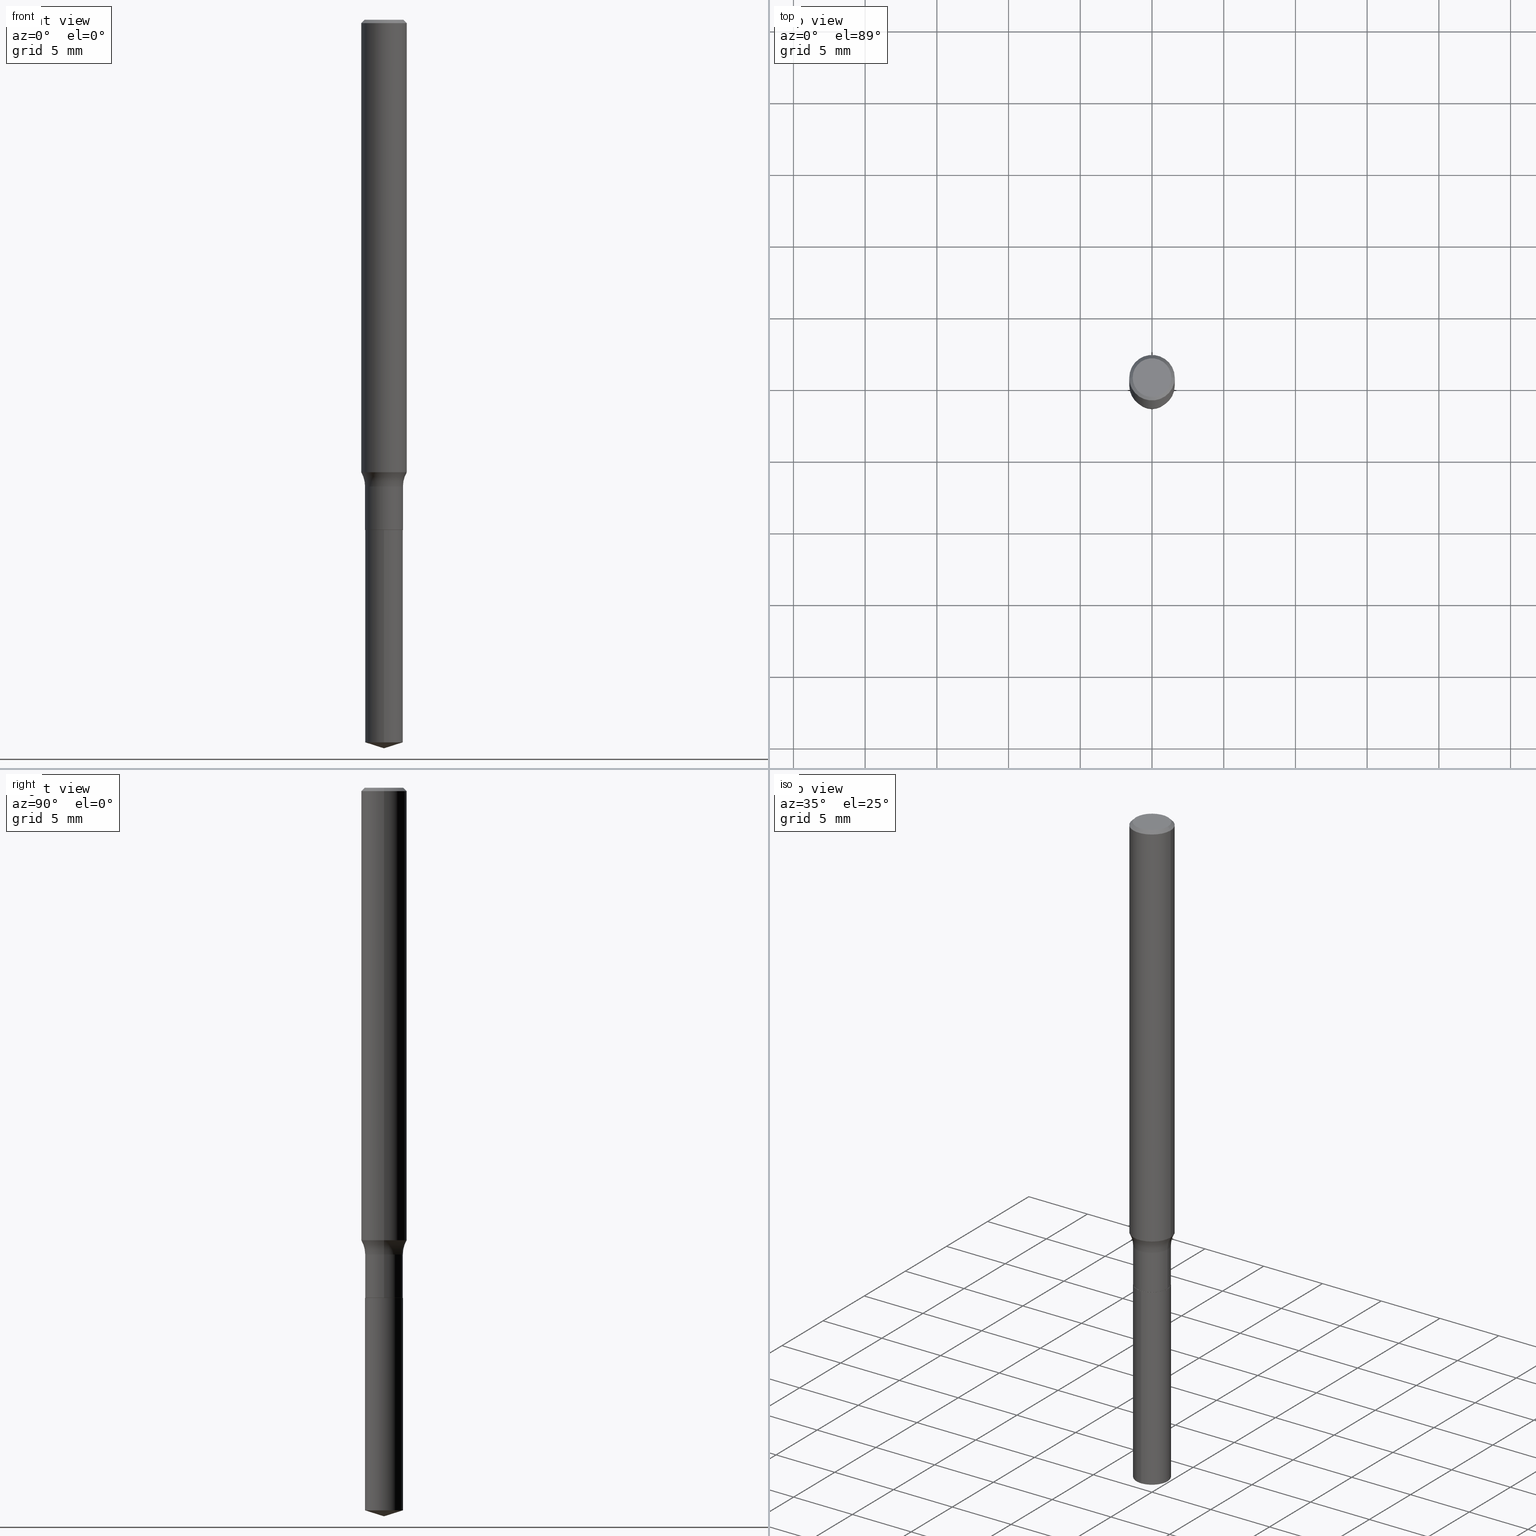
[diagram: canonical four-view strip — front | top / right | iso, engineering-drawing reading convention]
A machine part, canonical four-view strip (front | top / right | iso — engineering-drawing reading convention). The complete STEP part file that produces these views, byte-faithful:
ISO-10303-21;
HEADER;
FILE_DESCRIPTION (( 'STEP AP203' ),
    '1' );
FILE_NAME ('52309.STEP',
    '2024-04-19T13:33:06',
    ( '' ),
    ( '' ),
    'SwSTEP 2.0',
    'SolidWorks 2023',
    '' );
FILE_SCHEMA (( 'CONFIG_CONTROL_DESIGN' ));
ENDSEC;

DATA;
#1 = ORIENTED_EDGE ( 'NONE', *, *, #315, .F. ) ;
#2 = UNCERTAINTY_MEASURE_WITH_UNIT (LENGTH_MEASURE( 1.000000000000000082E-05 ), #287, 'distance_accuracy_value', 'NONE');
#3 = VERTEX_POINT ( 'NONE', #238 ) ;
#4 = CALENDAR_DATE ( 2024, 19, 4 ) ;
#5 = CONICAL_SURFACE ( 'NONE', #358, 124.8659371009133139, 1.265363707695887685 ) ;
#6 = FACE_OUTER_BOUND ( 'NONE', #313, .T. ) ;
#7 = VERTEX_POINT ( 'NONE', #174 ) ;
#8 = APPROVAL_STATUS ( 'not_yet_approved' ) ;
#9 = CARTESIAN_POINT ( 'NONE',  ( 3.425857250584757942E-29, -4.891216207585362759E-15, -1.400900000000000034 ) ) ;
#10 = EDGE_CURVE ( 'NONE', #286, #53, #359, .T. ) ;
#11 = ORIENTED_EDGE ( 'NONE', *, *, #382, .F. ) ;
#12 = VERTEX_POINT ( 'NONE', #429 ) ;
#13 = ORIENTED_EDGE ( 'NONE', *, *, #479, .F. ) ;
#14 = ORIENTED_EDGE ( 'NONE', *, *, #199, .T. ) ;
#15 = AXIS2_PLACEMENT_3D ( 'NONE', #9, #171, #318 ) ;
#16 = AXIS2_PLACEMENT_3D ( 'NONE', #71, #149, #442 ) ;
#17 = DIRECTION ( 'NONE',  ( -6.982962677686266711E-15, -1.000000000000000000, 5.253553833969737838E-15 ) ) ;
#18 = EDGE_CURVE ( 'NONE', #316, #53, #240, .T. ) ;
#19 = DIRECTION ( 'NONE',  ( -1.000000000000000000, 6.982962677686266711E-15, 0.000000000000000000 ) ) ;
#20 = ORIENTED_EDGE ( 'NONE', *, *, #59, .F. ) ;
#21 = LINE ( 'NONE', #147, #464 ) ;
#22 = DIRECTION ( 'NONE',  ( -2.445468806185136597E-29, 3.491481338843145583E-15, 1.000000000000000000 ) ) ;
#23 = APPROVAL_DATE_TIME ( #487, #415 ) ;
#24 = PRODUCT_DEFINITION ( 'UNKNOWN', '', #469, #130 ) ;
#25 = CLOSED_SHELL ( 'NONE', ( #490, #447, #491, #270, #39 ) ) ;
#26 = DIRECTION ( 'NONE',  ( -6.982962677686266711E-15, -1.000000000000000000, 5.253553833969737838E-15 ) ) ;
#27 = DIRECTION ( 'NONE',  ( -2.445468806185136597E-29, 3.491481338843145583E-15, 1.000000000000000000 ) ) ;
#28 = DIRECTION ( 'NONE',  ( -2.445468806185136877E-29, 3.491481338843145188E-15, 1.000000000000000000 ) ) ;
#29 = CARTESIAN_POINT ( 'NONE',  ( 0.000000000000000000, 0.000000000000000000, 0.000000000000000000 ) ) ;
#30 = FACE_OUTER_BOUND ( 'NONE', #371, .T. ) ;
#31 = EDGE_LOOP ( 'NONE', ( #226, #391, #167, #436 ) ) ;
#32 = PERSON_AND_ORGANIZATION ( #191, #117 ) ;
#33 = FACE_OUTER_BOUND ( 'NONE', #319, .T. ) ;
#34 = CC_DESIGN_PERSON_AND_ORGANIZATION_ASSIGNMENT ( #467, #127, ( #24 ) ) ;
#35 = DIRECTION ( 'NONE',  ( -2.445120969459093644E-29, 3.491979460832475934E-15, 1.000000000000000000 ) ) ;
#36 = ADVANCED_FACE ( 'NONE', ( #6 ), #138, .F. ) ;
#37 = CIRCLE ( 'NONE', #146, 0.05199999999999999067 ) ;
#38 = CIRCLE ( 'NONE', #159, 0.07799999999999999989 ) ;
#39 = ADVANCED_FACE ( 'NONE', ( #245 ), #89, .F. ) ;
#40 = VECTOR ( 'NONE', #308, 39.37007874015748143 ) ;
#41 = CIRCLE ( 'NONE', #229, 0.05312499999999999861 ) ;
#42 = VECTOR ( 'NONE', #292, 39.37007874015748143 ) ;
#43 = CARTESIAN_POINT ( 'NONE',  ( 3.037794505089405149E-29, -4.337165454302237008E-15, -1.242213557337613405 ) ) ;
#44 = ORIENTED_EDGE ( 'NONE', *, *, #426, .T. ) ;
#45 = ORIENTED_EDGE ( 'NONE', *, *, #221, .F. ) ;
#46 = APPLICATION_PROTOCOL_DEFINITION ( 'international standard', 'config_control_design', 1994, #105 ) ;
#47 = ADVANCED_BREP_SHAPE_REPRESENTATION ( '52309', ( #121, #119, #62 ), #445 ) ;
#48 = CARTESIAN_POINT ( 'NONE',  ( -0.06250000000000000000, 4.037025298037369491E-16, -0.009375000000000067307 ) ) ;
#49 = EDGE_LOOP ( 'NONE', ( #55, #139, #275, #427 ) ) ;
#50 = TOROIDAL_SURFACE ( 'NONE', #16, 0.1299999999999999767, 0.07799999999999999989 ) ;
#51 = EDGE_CURVE ( 'NONE', #355, #300, #242, .T. ) ;
#52 = CARTESIAN_POINT ( 'NONE',  ( 2.292627005798581937E-31, -3.273263755165472033E-17, -0.009375000000000067307 ) ) ;
#53 = VERTEX_POINT ( 'NONE', #54 ) ;
#54 = CARTESIAN_POINT ( 'NONE',  ( -0.06250000000000000000, -1.740859836076881399E-15, -0.009375000000000067307 ) ) ;
#55 = ORIENTED_EDGE ( 'NONE', *, *, #389, .T. ) ;
#56 = DIRECTION ( 'NONE',  ( -2.445120969459093644E-29, 3.491979460832475934E-15, 1.000000000000000000 ) ) ;
#57 = CARTESIAN_POINT ( 'NONE',  ( 4.850640152010381850E-29, -6.926008224040978869E-15, -1.983604462978292737 ) ) ;
#58 = EDGE_LOOP ( 'NONE', ( #407, #172, #211, #365 ) ) ;
#59 = EDGE_CURVE ( 'NONE', #316, #239, #91, .T. ) ;
#60 = COORDINATED_UNIVERSAL_TIME_OFFSET ( 5, 0, .BEHIND. ) ;
#61 = CIRCLE ( 'NONE', #198, 0.05200000000000000455 ) ;
#62 = AXIS2_PLACEMENT_3D ( 'NONE', #362, #400, #215 ) ;
#63 = DIRECTION ( 'NONE',  ( 1.000000000000000000, -6.982962677686268288E-15, 0.000000000000000000 ) ) ;
#64 = DIRECTION ( 'NONE',  ( 1.000000000000000000, -6.982962677686266711E-15, 0.000000000000000000 ) ) ;
#65 = PERSON_AND_ORGANIZATION_ROLE ( 'classification_officer' ) ;
#66 = DIRECTION ( 'NONE',  ( -2.445468806185136597E-29, 3.491481338843145583E-15, 1.000000000000000000 ) ) ;
#67 = DIRECTION ( 'NONE',  ( -6.659769872151623411E-15, -0.9537169507482254893, 0.3007057995042776710 ) ) ;
#68 = DIRECTION ( 'NONE',  ( -2.445468806185136877E-29, 3.491481338843145188E-15, 1.000000000000000000 ) ) ;
#69 = DIRECTION ( 'NONE',  ( 7.105427357601001859E-15, 1.000000000000000000, -3.491481338843145583E-15 ) ) ;
#70 = PRODUCT ( '52309', '52309', '', ( #366 ) ) ;
#71 = CARTESIAN_POINT ( 'NONE',  ( 3.133379181365015096E-29, -4.473635039459721750E-15, -1.281299999999999883 ) ) ;
#72 = AXIS2_PLACEMENT_3D ( 'NONE', #189, #99, #64 ) ;
#73 = PLANE ( 'NONE',  #386 ) ;
#74 = SECURITY_CLASSIFICATION ( '', '', #302 ) ;
#75 = CYLINDRICAL_SURFACE ( 'NONE', #234, 0.05199999999999999067 ) ;
#76 = DIRECTION ( 'NONE',  ( 1.000000000000000000, -6.982962677686266711E-15, 0.000000000000000000 ) ) ;
#77 = CARTESIAN_POINT ( 'NONE',  ( 3.425857250584757942E-29, -4.891216207585362759E-15, -1.400900000000000034 ) ) ;
#78 = ADVANCED_FACE ( 'NONE', ( #123 ), #423, .T. ) ;
#79 = AXIS2_PLACEMENT_3D ( 'NONE', #222, #22, #185 ) ;
#80 = AXIS2_PLACEMENT_3D ( 'NONE', #43, #394, #203 ) ;
#81 = AXIS2_PLACEMENT_3D ( 'NONE', #142, #112, #298 ) ;
#82 = PRODUCT_RELATED_PRODUCT_CATEGORY ( 'detail', '', ( #70 ) ) ;
#83 = DIRECTION ( 'NONE',  ( -2.445468806185136597E-29, 3.491481338843145583E-15, 1.000000000000000000 ) ) ;
#84 = ORIENTED_EDGE ( 'NONE', *, *, #462, .F. ) ;
#85 = PERSON_AND_ORGANIZATION_ROLE ( 'design_owner' ) ;
#86 = CARTESIAN_POINT ( 'NONE',  ( -0.06250000000000008327, 4.440892098500632078E-16, -3.074334431409319967E-30 ) ) ;
#87 = EDGE_LOOP ( 'NONE', ( #183, #430, #425, #472 ) ) ;
#88 = ADVANCED_FACE ( 'NONE', ( #387 ), #322, .T. ) ;
#89 = PLANE ( 'NONE',  #200 ) ;
#90 = ORIENTED_EDGE ( 'NONE', *, *, #59, .T. ) ;
#91 = CIRCLE ( 'NONE', #80, 0.06250000000000016653 ) ;
#92 = ORIENTED_EDGE ( 'NONE', *, *, #10, .T. ) ;
#93 = APPROVAL_PERSON_ORGANIZATION ( #413, #351, #227 ) ;
#94 = ORIENTED_EDGE ( 'NONE', *, *, #250, .F. ) ;
#95 = CARTESIAN_POINT ( 'NONE',  ( 3.425857250584757942E-29, -4.891216207585362759E-15, -1.400900000000000034 ) ) ;
#96 = CARTESIAN_POINT ( 'NONE',  ( 0.000000000000000000, 0.000000000000000000, 0.000000000000000000 ) ) ;
#97 = EDGE_LOOP ( 'NONE', ( #20, #364, #14, #252 ) ) ;
#98 = CARTESIAN_POINT ( 'NONE',  ( 0.06250000000000016653, -4.773600621657630255E-15, -1.242213557337613405 ) ) ;
#99 = DIRECTION ( 'NONE',  ( -2.445468806185136597E-29, 3.491481338843145583E-15, 1.000000000000000000 ) ) ;
#100 = CALENDAR_DATE ( 2024, 19, 4 ) ;
#101 = VECTOR ( 'NONE', #28, 39.37007874015748143 ) ;
#102 = CC_DESIGN_APPROVAL ( #492, ( #24 ) ) ;
#103 = LINE ( 'NONE', #335, #294 ) ;
#104 = CARTESIAN_POINT ( 'NONE',  ( 0.05312499999999999861, -4.129888592719941322E-16, -3.903561672281913772E-17 ) ) ;
#105 = APPLICATION_CONTEXT ( 'configuration controlled 3d designs of mechanical parts and assemblies' ) ;
#106 = DIRECTION ( 'NONE',  ( -2.445468806185136597E-29, 3.491481338843145583E-15, 1.000000000000000000 ) ) ;
#107 = FACE_OUTER_BOUND ( 'NONE', #243, .T. ) ;
#108 = DIRECTION ( 'NONE',  ( -2.445120969459093644E-29, 3.491979460832475934E-15, 1.000000000000000000 ) ) ;
#109 = PERSON_AND_ORGANIZATION ( #191, #117 ) ;
#110 = DIRECTION ( 'NONE',  ( 6.776566513254250249E-15, 0.9537169507482275987, 0.3007057995042710652 ) ) ;
#111 = ADVANCED_FACE ( 'NONE', ( #213 ), #367, .T. ) ;
#112 = DIRECTION ( 'NONE',  ( -2.445468806185136597E-29, 3.491481338843145583E-15, 1.000000000000000000 ) ) ;
#113 = DATE_AND_TIME ( #187, #168 ) ;
#114 = CARTESIAN_POINT ( 'NONE',  ( -0.1299999999999999767, -3.549929482971591477E-15, -1.281299999999999883 ) ) ;
#115 = AXIS2_PLACEMENT_3D ( 'NONE', #456, #269, #116 ) ;
#116 = DIRECTION ( 'NONE',  ( -6.982962677686266711E-15, -1.000000000000000000, 5.253553833969737838E-15 ) ) ;
#117 = ORGANIZATION ( 'UNSPECIFIED', 'UNSPECIFIED', '' ) ;
#118 = ADVANCED_FACE ( 'NONE', ( #476 ), #342, .F. ) ;
#119 = MANIFOLD_SOLID_BREP ( 'Body-Move/Copy2[2]', #256 ) ;
#120 = AXIS2_PLACEMENT_3D ( 'NONE', #96, #186, #150 ) ;
#121 = MANIFOLD_SOLID_BREP ( 'Body-Move/Copy2[1]', #25 ) ;
#122 = ADVANCED_FACE ( 'NONE', ( #411 ), #348, .T. ) ;
#123 = FACE_OUTER_BOUND ( 'NONE', #276, .T. ) ;
#124 = AXIS2_PLACEMENT_3D ( 'NONE', #301, #417, #76 ) ;
#125 = ORIENTED_EDGE ( 'NONE', *, *, #305, .T. ) ;
#126 = CC_DESIGN_APPROVAL ( #415, ( #469 ) ) ;
#127 = PERSON_AND_ORGANIZATION_ROLE ( 'creator' ) ;
#128 = ORIENTED_EDGE ( 'NONE', *, *, #409, .F. ) ;
#129 = EDGE_CURVE ( 'NONE', #3, #300, #412, .T. ) ;
#130 = DESIGN_CONTEXT ( 'detailed design', #105, 'design' ) ;
#131 = ORIENTED_EDGE ( 'NONE', *, *, #184, .F. ) ;
#132 = CALENDAR_DATE ( 2024, 19, 4 ) ;
#133 = ORIENTED_EDGE ( 'NONE', *, *, #421, .F. ) ;
#134 =( NAMED_UNIT ( * ) PLANE_ANGLE_UNIT ( ) SI_UNIT ( $, .RADIAN. ) );
#135 = ORIENTED_EDGE ( 'NONE', *, *, #374, .T. ) ;
#136 = AXIS2_PLACEMENT_3D ( 'NONE', #403, #265, #63 ) ;
#137 = CIRCLE ( 'NONE', #419, 0.05149999999999999023 ) ;
#138 = PLANE ( 'NONE',  #228 ) ;
#139 = ORIENTED_EDGE ( 'NONE', *, *, #151, .T. ) ;
#140 = DIRECTION ( 'NONE',  ( -2.445120969459093644E-29, 3.491979460832475934E-15, 1.000000000000000000 ) ) ;
#141 = DIRECTION ( 'NONE',  ( 1.000000000000000000, -6.982962677686270655E-15, 0.000000000000000000 ) ) ;
#142 = CARTESIAN_POINT ( 'NONE',  ( 0.000000000000000000, 0.000000000000000000, 0.000000000000000000 ) ) ;
#143 = DIRECTION ( 'NONE',  ( -2.445468806185136597E-29, 3.491481338843145583E-15, 1.000000000000000000 ) ) ;
#144 = PERSON_AND_ORGANIZATION ( #191, #117 ) ;
#145 = EDGE_LOOP ( 'NONE', ( #206, #474, #128, #180 ) ) ;
#146 = AXIS2_PLACEMENT_3D ( 'NONE', #406, #56, #26 ) ;
#147 = CARTESIAN_POINT ( 'NONE',  ( -0.05149999999999999023, -4.525286698668911232E-15, -1.400900000000000034 ) ) ;
#148 = CIRCLE ( 'NONE', #434, 0.05312499999999999861 ) ;
#149 = DIRECTION ( 'NONE',  ( -2.445468806185136597E-29, 3.491481338843145583E-15, 1.000000000000000000 ) ) ;
#150 = DIRECTION ( 'NONE',  ( 1.000000000000000000, -6.982962677686266711E-15, 4.876176775795935793E-29 ) ) ;
#151 = EDGE_CURVE ( 'NONE', #246, #12, #220, .T. ) ;
#152 = PERSON_AND_ORGANIZATION_ROLE ( 'design_supplier' ) ;
#153 = LINE ( 'NONE', #383, #268 ) ;
#154 = DIRECTION ( 'NONE',  ( -2.445468806185136597E-29, 3.491481338843145583E-15, 1.000000000000000000 ) ) ;
#155 = DIRECTION ( 'NONE',  ( -2.445468806185136597E-29, 3.491481338843145583E-15, 1.000000000000000000 ) ) ;
#156 = SHAPE_DEFINITION_REPRESENTATION ( #194, #47 ) ;
#157 = LINE ( 'NONE', #439, #218 ) ;
#158 = EDGE_CURVE ( 'NONE', #12, #466, #37, .T. ) ;
#159 = AXIS2_PLACEMENT_3D ( 'NONE', #182, #340, #141 ) ;
#160 = AXIS2_PLACEMENT_3D ( 'NONE', #188, #154, #328 ) ;
#161 = AXIS2_PLACEMENT_3D ( 'NONE', #451, #108, #263 ) ;
#162 = DIRECTION ( 'NONE',  ( 1.000000000000000000, -6.982962677686265922E-15, 4.876176775795935793E-29 ) ) ;
#163 = ORIENTED_EDGE ( 'NONE', *, *, #420, .F. ) ;
#164 = DATE_AND_TIME ( #132, #459 ) ;
#165 = EDGE_CURVE ( 'NONE', #309, #466, #103, .T. ) ;
#166 = AXIS2_PLACEMENT_3D ( 'NONE', #249, #143, #293 ) ;
#167 = ORIENTED_EDGE ( 'NONE', *, *, #409, .T. ) ;
#168 = LOCAL_TIME ( 9, 33, 6.000000000000000000, #338 ) ;
#169 = DIRECTION ( 'NONE',  ( 2.445120969459093363E-29, -3.491979460832475934E-15, -1.000000000000000000 ) ) ;
#170 = ORIENTED_EDGE ( 'NONE', *, *, #463, .F. ) ;
#171 = DIRECTION ( 'NONE',  ( -2.445468806185136597E-29, 3.491481338843145583E-15, 1.000000000000000000 ) ) ;
#172 = ORIENTED_EDGE ( 'NONE', *, *, #315, .T. ) ;
#173 = APPLICATION_PROTOCOL_DEFINITION ( 'international standard', 'config_control_design', 1994, #251 ) ;
#174 = CARTESIAN_POINT ( 'NONE',  ( 4.890241938918187287E-29, -6.983958921664951869E-15, -2.000000000000000000 ) ) ;
#175 = VERTEX_POINT ( 'NONE', #260 ) ;
#176 = CIRCLE ( 'NONE', #72, 0.06250000000000000000 ) ;
#177 = EDGE_LOOP ( 'NONE', ( #433, #440, #323, #13 ) ) ;
#178 = CARTESIAN_POINT ( 'NONE',  ( 0.06250000000000000000, -4.691678049070464390E-16, -0.009375000000000067307 ) ) ;
#179 = APPROVAL_STATUS ( 'not_yet_approved' ) ;
#180 = ORIENTED_EDGE ( 'NONE', *, *, #465, .F. ) ;
#181 = DIRECTION ( 'NONE',  ( -2.445468806185136597E-29, 3.491481338843145583E-15, 1.000000000000000000 ) ) ;
#182 = CARTESIAN_POINT ( 'NONE',  ( 0.1299999999999999767, -5.381420187558935949E-15, -1.281299999999999883 ) ) ;
#183 = ORIENTED_EDGE ( 'NONE', *, *, #341, .F. ) ;
#184 = EDGE_CURVE ( 'NONE', #7, #309, #369, .T. ) ;
#185 = DIRECTION ( 'NONE',  ( 1.000000000000000000, -6.982962677686259611E-15, 0.000000000000000000 ) ) ;
#186 = DIRECTION ( 'NONE',  ( -2.445468806185136597E-29, 3.491481338843145583E-15, 1.000000000000000000 ) ) ;
#187 = CALENDAR_DATE ( 2024, 19, 4 ) ;
#188 = CARTESIAN_POINT ( 'NONE',  ( 3.133379181365015096E-29, -4.473635039459721750E-15, -1.281299999999999883 ) ) ;
#189 = CARTESIAN_POINT ( 'NONE',  ( 2.292627005798581937E-31, -3.273263755165472033E-17, -0.009375000000000067307 ) ) ;
#190 = APPROVAL_STATUS ( 'not_yet_approved' ) ;
#191 = PERSON ( 'UNSPECIFIED', 'UNSPECIFIED', 'UNSPECIFIED', ('UNSPECIFIED'), ('UNSPECIFIED'), ('UNSPECIFIED') ) ;
#192 = FACE_OUTER_BOUND ( 'NONE', #49, .T. ) ;
#193 = CARTESIAN_POINT ( 'NONE',  ( 3.694822225952862472E-16, 0.05199999999999509875, -1.400900000000000256 ) ) ;
#194 = PRODUCT_DEFINITION_SHAPE ( 'NONE', 'NONE',  #24 ) ;
#195 = CARTESIAN_POINT ( 'NONE',  ( -9.137387587342702156E-28, 1.304962452294171470E-13, 37.37007874015748143 ) ) ;
#196 = DIRECTION ( 'NONE',  ( -2.445120969459093644E-29, 3.491979460832475934E-15, 1.000000000000000000 ) ) ;
#197 = AXIS2_PLACEMENT_3D ( 'NONE', #52, #352, #210 ) ;
#198 = AXIS2_PLACEMENT_3D ( 'NONE', #486, #155, #299 ) ;
#199 = EDGE_CURVE ( 'NONE', #175, #324, #236, .T. ) ;
#200 = AXIS2_PLACEMENT_3D ( 'NONE', #396, #169, #354 ) ;
#201 = VECTOR ( 'NONE', #368, 39.37007874015748143 ) ;
#202 = VECTOR ( 'NONE', #110, 39.37007874015748143 ) ;
#203 = DIRECTION ( 'NONE',  ( 1.000000000000000000, -6.982962677686259611E-15, 0.000000000000000000 ) ) ;
#204 = ADVANCED_FACE ( 'NONE', ( #398 ), #271, .T. ) ;
#205 = DIRECTION ( 'NONE',  ( -0.7071067811865465735, 2.468850131082246805E-15, -0.7071067811865484609 ) ) ;
#206 = ORIENTED_EDGE ( 'NONE', *, *, #221, .T. ) ;
#207 = ORIENTED_EDGE ( 'NONE', *, *, #158, .T. ) ;
#208 = AXIS2_PLACEMENT_3D ( 'NONE', #114, #69, #334 ) ;
#209 = ORIENTED_EDGE ( 'NONE', *, *, #337, .F. ) ;
#210 = DIRECTION ( 'NONE',  ( -1.000000000000000000, 6.982962677686266711E-15, 0.000000000000000000 ) ) ;
#211 = ORIENTED_EDGE ( 'NONE', *, *, #165, .T. ) ;
#212 =( NAMED_UNIT ( * ) SI_UNIT ( $, .STERADIAN. ) SOLID_ANGLE_UNIT ( ) );
#213 = FACE_OUTER_BOUND ( 'NONE', #320, .T. ) ;
#214 = ORIENTED_EDGE ( 'NONE', *, *, #346, .F. ) ;
#215 = DIRECTION ( 'NONE',  ( 1.000000000000000000, 0.000000000000000000, 0.000000000000000000 ) ) ;
#216 = DIRECTION ( 'NONE',  ( -2.445120969459093644E-29, 3.491979460832475934E-15, 1.000000000000000000 ) ) ;
#217 = DIRECTION ( 'NONE',  ( -6.982962677686266711E-15, -1.000000000000000000, 5.253553833969737838E-15 ) ) ;
#218 = VECTOR ( 'NONE', #68, 39.37007874015748143 ) ;
#219 = EDGE_CURVE ( 'NONE', #324, #175, #393, .T. ) ;
#220 = LINE ( 'NONE', #193, #201 ) ;
#221 = EDGE_CURVE ( 'NONE', #239, #316, #404, .T. ) ;
#222 = CARTESIAN_POINT ( 'NONE',  ( 3.037794505089405149E-29, -4.337165454302237008E-15, -1.242213557337613405 ) ) ;
#223 = CARTESIAN_POINT ( 'NONE',  ( 4.773019151292988932E-46, -6.814606366898300824E-32, -1.951780836141094012E-17 ) ) ;
#224 = CARTESIAN_POINT ( 'NONE',  ( 3.133379181365015096E-29, -4.473635039459721750E-15, -1.281299999999999883 ) ) ;
#225 = CARTESIAN_POINT ( 'NONE',  ( 9.546038302585977863E-46, -1.362921273379660165E-31, -3.903561672282188024E-17 ) ) ;
#226 = ORIENTED_EDGE ( 'NONE', *, *, #374, .F. ) ;
#227 = APPROVAL_ROLE ( '' ) ;
#228 = AXIS2_PLACEMENT_3D ( 'NONE', #432, #237, #162 ) ;
#229 = AXIS2_PLACEMENT_3D ( 'NONE', #443, #408, #373 ) ;
#230 = FACE_OUTER_BOUND ( 'NONE', #145, .T. ) ;
#231 = CARTESIAN_POINT ( 'NONE',  ( 0.05200000000000000455, -5.252584526155628197E-15, -1.400400000000000089 ) ) ;
#232 = CARTESIAN_POINT ( 'NONE',  ( 3.425857250584757942E-29, -4.891216207585362759E-15, -1.400900000000000034 ) ) ;
#233 = DIRECTION ( 'NONE',  ( -2.445120969459093644E-29, 3.491979460832475934E-15, 1.000000000000000000 ) ) ;
#234 = AXIS2_PLACEMENT_3D ( 'NONE', #232, #196, #381 ) ;
#235 = ADVANCED_FACE ( 'NONE', ( #248 ), #330, .T. ) ;
#236 = CIRCLE ( 'NONE', #281, 0.05199999999999998374 ) ;
#237 = DIRECTION ( 'NONE',  ( -2.438088387897960049E-29, 3.491481338843145188E-15, 1.000000000000000000 ) ) ;
#238 = CARTESIAN_POINT ( 'NONE',  ( -0.05200000000000000455, -4.312070530592579472E-15, -1.400400000000000089 ) ) ;
#239 = VERTEX_POINT ( 'NONE', #98 ) ;
#240 = LINE ( 'NONE', #86, #307 ) ;
#241 = ORIENTED_EDGE ( 'NONE', *, *, #129, .F. ) ;
#242 = LINE ( 'NONE', #435, #40 ) ;
#243 = EDGE_LOOP ( 'NONE', ( #133, #45, #125, #388 ) ) ;
#244 = ADVANCED_FACE ( 'NONE', ( #107 ), #50, .F. ) ;
#245 = FACE_OUTER_BOUND ( 'NONE', #399, .T. ) ;
#246 = VERTEX_POINT ( 'NONE', #295 ) ;
#247 = CC_DESIGN_DATE_AND_TIME_ASSIGNMENT ( #431, #392, ( #24 ) ) ;
#248 = FACE_OUTER_BOUND ( 'NONE', #177, .T. ) ;
#249 = CARTESIAN_POINT ( 'NONE',  ( 3.425857250584757942E-29, -4.891216207585362759E-15, -1.400900000000000034 ) ) ;
#250 = EDGE_CURVE ( 'NONE', #306, #274, #450, .T. ) ;
#251 = APPLICATION_CONTEXT ( 'configuration controlled 3d designs of mechanical parts and assemblies' ) ;
#252 = ORIENTED_EDGE ( 'NONE', *, *, #305, .F. ) ;
#253 = ORIENTED_EDGE ( 'NONE', *, *, #463, .T. ) ;
#254 = CARTESIAN_POINT ( 'NONE',  ( 0.06250000000000000000, -4.615137624123754923E-16, -0.009375000000000067307 ) ) ;
#255 = CARTESIAN_POINT ( 'NONE',  ( -0.05312499999999999861, 3.873362110279098601E-16, -3.903561672282453649E-17 ) ) ;
#256 = CLOSED_SHELL ( 'NONE', ( #122, #204, #257, #118, #235, #88, #244, #279, #78, #288, #36, #111 ) ) ;
#257 = ADVANCED_FACE ( 'NONE', ( #230 ), #380, .T. ) ;
#258 = CONICAL_SURFACE ( 'NONE', #312, 124.8659371009133139, 1.265363707695887685 ) ;
#259 = DIRECTION ( 'NONE',  ( -6.982962677686267499E-15, -1.000000000000000000, 3.500519750498753736E-15 ) ) ;
#260 = CARTESIAN_POINT ( 'NONE',  ( -0.05199999999999998374, -4.312070530592579472E-15, -1.281299999999999883 ) ) ;
#261 = DIRECTION ( 'NONE',  ( 1.000000000000000000, -6.982962677686268288E-15, 0.000000000000000000 ) ) ;
#262 = CARTESIAN_POINT ( 'NONE',  ( 3.424634516181665701E-29, -4.889470466915941255E-15, -1.400400000000000089 ) ) ;
#263 = DIRECTION ( 'NONE',  ( -6.982962677686266711E-15, -1.000000000000000000, 5.253553833969737838E-15 ) ) ;
#264 = LINE ( 'NONE', #267, #101 ) ;
#265 = DIRECTION ( 'NONE',  ( -2.445468806185136597E-29, 3.491481338843145583E-15, 1.000000000000000000 ) ) ;
#266 = AXIS2_PLACEMENT_3D ( 'NONE', #454, #480, #19 ) ;
#267 = CARTESIAN_POINT ( 'NONE',  ( 0.06250000000000008327, -4.364351673553922611E-16, 3.047610484872464074E-30 ) ) ;
#268 = VECTOR ( 'NONE', #453, 39.37007874015748143 ) ;
#269 = DIRECTION ( 'NONE',  ( -2.445120969459093644E-29, 3.491979460832475934E-15, 1.000000000000000000 ) ) ;
#270 = ADVANCED_FACE ( 'NONE', ( #285 ), #438, .T. ) ;
#271 = CONICAL_SURFACE ( 'NONE', #266, 0.06250000000000000000, 0.7853981633974469467 ) ;
#272 = CIRCLE ( 'NONE', #161, 0.05199999999999999067 ) ;
#273 = CARTESIAN_POINT ( 'NONE',  ( 0.000000000000000000, 0.000000000000000000, 0.000000000000000000 ) ) ;
#274 = VERTEX_POINT ( 'NONE', #178 ) ;
#275 = ORIENTED_EDGE ( 'NONE', *, *, #357, .F. ) ;
#276 = EDGE_LOOP ( 'NONE', ( #94, #170, #92, #395 ) ) ;
#277 = ORIENTED_EDGE ( 'NONE', *, *, #462, .T. ) ;
#278 = ORIENTED_EDGE ( 'NONE', *, *, #357, .T. ) ;
#279 = ADVANCED_FACE ( 'NONE', ( #325 ), #478, .T. ) ;
#280 = AXIS2_PLACEMENT_3D ( 'NONE', #273, #83, #363 ) ;
#281 = AXIS2_PLACEMENT_3D ( 'NONE', #224, #181, #375 ) ;
#282 = ORIENTED_EDGE ( 'NONE', *, *, #51, .T. ) ;
#283 = APPROVAL_PERSON_ORGANIZATION ( #370, #415, #452 ) ;
#284 =( LENGTH_UNIT ( ) NAMED_UNIT ( * ) SI_UNIT ( $, .METRE. ) );
#285 = FACE_OUTER_BOUND ( 'NONE', #58, .T. ) ;
#286 = VERTEX_POINT ( 'NONE', #255 ) ;
#287 =( CONVERSION_BASED_UNIT ( 'INCH', #317 ) LENGTH_UNIT ( ) NAMED_UNIT ( #461 ) );
#288 = ADVANCED_FACE ( 'NONE', ( #30 ), #73, .F. ) ;
#289 = CARTESIAN_POINT ( 'NONE',  ( 4.890241938918187287E-29, -6.983958921664951869E-15, -2.000000000000000000 ) ) ;
#290 = CARTESIAN_POINT ( 'NONE',  ( 0.05199999999999998374, -4.836749098699407114E-15, -1.281299999999999883 ) ) ;
#291 = DIRECTION ( 'NONE',  ( -0.7071067811866259545, 7.493145998870638150E-15, 0.7071067811864690800 ) ) ;
#292 = DIRECTION ( 'NONE',  ( 0.7071067811865465735, -7.319954787623252890E-15, -0.7071067811865484609 ) ) ;
#293 = DIRECTION ( 'NONE',  ( 1.000000000000000000, -6.982962677686268288E-15, 0.000000000000000000 ) ) ;
#294 = VECTOR ( 'NONE', #140, 39.37007874015748143 ) ;
#295 = CARTESIAN_POINT ( 'NONE',  ( 3.694822225953003974E-16, 0.05199999999999304484, -1.983604462978292959 ) ) ;
#296 = CARTESIAN_POINT ( 'NONE',  ( 0.05149999999999999023, -5.250838785486205905E-15, -1.400900000000000034 ) ) ;
#297 = DATE_TIME_ROLE ( 'classification_date' ) ;
#298 = DIRECTION ( 'NONE',  ( 1.000000000000000000, -6.982962677686267499E-15, 4.876176775795935793E-29 ) ) ;
#299 = DIRECTION ( 'NONE',  ( 1.000000000000000000, -6.982962677686276177E-15, 0.000000000000000000 ) ) ;
#300 = VERTEX_POINT ( 'NONE', #231 ) ;
#301 = CARTESIAN_POINT ( 'NONE',  ( 2.292627005798581937E-31, -3.273263755165472033E-17, -0.009375000000000067307 ) ) ;
#302 = SECURITY_CLASSIFICATION_LEVEL ( 'unclassified' ) ;
#303 = AXIS2_PLACEMENT_3D ( 'NONE', #29, #339, #488 ) ;
#304 = APPROVAL_PERSON_ORGANIZATION ( #356, #492, #441 ) ;
#305 = EDGE_CURVE ( 'NONE', #239, #324, #38, .T. ) ;
#306 = VERTEX_POINT ( 'NONE', #104 ) ;
#307 = VECTOR ( 'NONE', #390, 39.37007874015748143 ) ;
#308 = DIRECTION ( 'NONE',  ( 0.7071067811866259545, -2.468850131083078659E-15, 0.7071067811864690800 ) ) ;
#309 = VERTEX_POINT ( 'NONE', #331 ) ;
#310 = APPROVAL_DATE_TIME ( #164, #492 ) ;
#311 = VECTOR ( 'NONE', #205, 39.37007874015748143 ) ;
#312 = AXIS2_PLACEMENT_3D ( 'NONE', #460, #233, #259 ) ;
#313 = EDGE_LOOP ( 'NONE', ( #214, #84 ) ) ;
#314 = ORIENTED_EDGE ( 'NONE', *, *, #426, .F. ) ;
#315 = EDGE_CURVE ( 'NONE', #246, #309, #333, .T. ) ;
#316 = VERTEX_POINT ( 'NONE', #489 ) ;
#317 = LENGTH_MEASURE_WITH_UNIT ( LENGTH_MEASURE( 0.02539999999999999897 ), #284 );
#318 = DIRECTION ( 'NONE',  ( 1.000000000000000000, -6.982962677686268288E-15, 0.000000000000000000 ) ) ;
#319 = EDGE_LOOP ( 'NONE', ( #314, #422, #1 ) ) ;
#320 = EDGE_LOOP ( 'NONE', ( #163, #277, #282, #241 ) ) ;
#321 = CC_DESIGN_PERSON_AND_ORGANIZATION_ASSIGNMENT ( #32, #65, ( #74 ) ) ;
#322 = CYLINDRICAL_SURFACE ( 'NONE', #280, 0.05199999999999999067 ) ;
#323 = ORIENTED_EDGE ( 'NONE', *, *, #219, .F. ) ;
#324 = VERTEX_POINT ( 'NONE', #290 ) ;
#325 = FACE_OUTER_BOUND ( 'NONE', #397, .T. ) ;
#326 = DIRECTION ( 'NONE',  ( 2.438088387897960049E-29, -3.491481338843145188E-15, -1.000000000000000000 ) ) ;
#327 = COORDINATED_UNIVERSAL_TIME_OFFSET ( 5, 0, .BEHIND. ) ;
#328 = DIRECTION ( 'NONE',  ( 1.000000000000000000, -6.982962677686268288E-15, 4.883557194083113462E-29 ) ) ;
#329 = ORIENTED_EDGE ( 'NONE', *, *, #51, .F. ) ;
#330 = CYLINDRICAL_SURFACE ( 'NONE', #81, 0.05199999999999999067 ) ;
#331 = CARTESIAN_POINT ( 'NONE',  ( -3.631140592396370957E-16, -0.05200000000000690181, -1.983604462978292515 ) ) ;
#332 = PERSON_AND_ORGANIZATION_ROLE ( 'creator' ) ;
#333 = CIRCLE ( 'NONE', #424, 0.05199999999999999067 ) ;
#334 = DIRECTION ( 'NONE',  ( -1.000000000000000000, 7.105427357600997914E-15, 0.000000000000000000 ) ) ;
#335 = CARTESIAN_POINT ( 'NONE',  ( -3.631140592396514924E-16, -0.05200000000000488259, -1.400899999999999812 ) ) ;
#336 = DIRECTION ( 'NONE',  ( 1.000000000000000000, -6.982962677686266711E-15, 4.881282378734115390E-29 ) ) ;
#337 = EDGE_CURVE ( 'NONE', #53, #274, #176, .T. ) ;
#338 = COORDINATED_UNIVERSAL_TIME_OFFSET ( 5, 0, .BEHIND. ) ;
#339 = DIRECTION ( 'NONE',  ( -2.445468806185136597E-29, 3.491481338843145583E-15, 1.000000000000000000 ) ) ;
#340 = DIRECTION ( 'NONE',  ( -6.982962677686266711E-15, -1.000000000000000000, 3.491481338843145583E-15 ) ) ;
#341 = EDGE_CURVE ( 'NONE', #3, #175, #157, .T. ) ;
#342 = TOROIDAL_SURFACE ( 'NONE', #160, 0.1299999999999999767, 0.07799999999999999989 ) ;
#343 = CIRCLE ( 'NONE', #124, 0.06250000000000000000 ) ;
#344 = DIRECTION ( 'NONE',  ( -6.982962677686267499E-15, -1.000000000000000000, 3.500519750498753736E-15 ) ) ;
#345 = LOCAL_TIME ( 9, 33, 6.000000000000000000, #327 ) ;
#346 = EDGE_CURVE ( 'NONE', #355, #477, #457, .T. ) ;
#347 = CC_DESIGN_PERSON_AND_ORGANIZATION_ASSIGNMENT ( #109, #152, ( #469 ) ) ;
#348 = CONICAL_SURFACE ( 'NONE', #136, 0.05149999999999999023, 0.7853981633975591903 ) ;
#349 = AXIS2_PLACEMENT_3D ( 'NONE', #95, #216, #17 ) ;
#350 = CC_DESIGN_SECURITY_CLASSIFICATION ( #74, ( #469 ) ) ;
#351 = APPROVAL ( #179, 'UNSPECIFIED' ) ;
#352 = DIRECTION ( 'NONE',  ( 2.445468806185136597E-29, -3.491481338843145583E-15, -1.000000000000000000 ) ) ;
#353 = ORIENTED_EDGE ( 'NONE', *, *, #389, .F. ) ;
#354 = DIRECTION ( 'NONE',  ( 6.982962677686265922E-15, 1.000000000000000000, -3.491979460832475934E-15 ) ) ;
#355 = VERTEX_POINT ( 'NONE', #296 ) ;
#356 = PERSON_AND_ORGANIZATION ( #191, #117 ) ;
#357 = EDGE_CURVE ( 'NONE', #466, #12, #272, .T. ) ;
#358 = AXIS2_PLACEMENT_3D ( 'NONE', #195, #35, #344 ) ;
#359 = LINE ( 'NONE', #48, #311 ) ;
#360 = LOCAL_TIME ( 9, 33, 6.000000000000000000, #448 ) ;
#361 = ORIENTED_EDGE ( 'NONE', *, *, #465, .T. ) ;
#362 = CARTESIAN_POINT ( 'NONE',  ( 0.000000000000000000, 0.000000000000000000, 0.000000000000000000 ) ) ;
#363 = DIRECTION ( 'NONE',  ( 1.000000000000000000, -6.982962677686267499E-15, 4.876176775795935793E-29 ) ) ;
#364 = ORIENTED_EDGE ( 'NONE', *, *, #421, .T. ) ;
#365 = ORIENTED_EDGE ( 'NONE', *, *, #158, .F. ) ;
#366 = MECHANICAL_CONTEXT ( 'NONE', #251, 'mechanical' ) ;
#367 = CONICAL_SURFACE ( 'NONE', #15, 0.05149999999999999023, 0.7853981633975591903 ) ;
#368 = DIRECTION ( 'NONE',  ( -2.445120969459093644E-29, 3.491979460832475934E-15, 1.000000000000000000 ) ) ;
#369 = LINE ( 'NONE', #289, #468 ) ;
#370 = PERSON_AND_ORGANIZATION ( #191, #117 ) ;
#371 = EDGE_LOOP ( 'NONE', ( #253, #135 ) ) ;
#372 = DIRECTION ( 'NONE',  ( 1.000000000000000000, -6.982962677686276177E-15, 0.000000000000000000 ) ) ;
#373 = DIRECTION ( 'NONE',  ( 1.000000000000000000, -6.982962677686266711E-15, 4.881282378734115390E-29 ) ) ;
#374 = EDGE_CURVE ( 'NONE', #306, #286, #148, .T. ) ;
#375 = DIRECTION ( 'NONE',  ( 1.000000000000000000, -6.982962677686260400E-15, 0.000000000000000000 ) ) ;
#376 = APPROVAL_DATE_TIME ( #458, #351 ) ;
#377 = CIRCLE ( 'NONE', #115, 0.05199999999999999067 ) ;
#378 = LINE ( 'NONE', #449, #202 ) ;
#379 = CC_DESIGN_PERSON_AND_ORGANIZATION_ASSIGNMENT ( #471, #85, ( #70 ) ) ;
#380 = CYLINDRICAL_SURFACE ( 'NONE', #303, 0.06250000000000008327 ) ;
#381 = DIRECTION ( 'NONE',  ( -6.982962677686266711E-15, -1.000000000000000000, 5.253553833969737838E-15 ) ) ;
#382 = EDGE_CURVE ( 'NONE', #300, #3, #61, .T. ) ;
#383 = CARTESIAN_POINT ( 'NONE',  ( 0.05199999999999999067, -3.631140592396858571E-16, 2.535611923413886108E-30 ) ) ;
#384 = LOCAL_TIME ( 9, 33, 6.000000000000000000, #428 ) ;
#385 = CC_DESIGN_DATE_AND_TIME_ASSIGNMENT ( #113, #297, ( #74 ) ) ;
#386 = AXIS2_PLACEMENT_3D ( 'NONE', #223, #326, #482 ) ;
#387 = FACE_OUTER_BOUND ( 'NONE', #87, .T. ) ;
#388 = ORIENTED_EDGE ( 'NONE', *, *, #219, .T. ) ;
#389 = EDGE_CURVE ( 'NONE', #309, #246, #377, .T. ) ;
#390 = DIRECTION ( 'NONE',  ( -2.445468806185136877E-29, 3.491481338843145188E-15, 1.000000000000000000 ) ) ;
#391 = ORIENTED_EDGE ( 'NONE', *, *, #250, .T. ) ;
#392 = DATE_TIME_ROLE ( 'creation_date' ) ;
#393 = CIRCLE ( 'NONE', #475, 0.05199999999999998374 ) ;
#394 = DIRECTION ( 'NONE',  ( -2.445468806185136597E-29, 3.491481338843145583E-15, 1.000000000000000000 ) ) ;
#395 = ORIENTED_EDGE ( 'NONE', *, *, #337, .T. ) ;
#396 = CARTESIAN_POINT ( 'NONE',  ( 3.425857250584757942E-29, -4.891216207585362759E-15, -1.400900000000000034 ) ) ;
#397 = EDGE_LOOP ( 'NONE', ( #470, #90, #361, #209 ) ) ;
#398 = FACE_OUTER_BOUND ( 'NONE', #31, .T. ) ;
#399 = EDGE_LOOP ( 'NONE', ( #278, #207 ) ) ;
#400 = DIRECTION ( 'NONE',  ( 0.000000000000000000, 0.000000000000000000, 1.000000000000000000 ) ) ;
#401 = ORIENTED_EDGE ( 'NONE', *, *, #420, .T. ) ;
#402 = AXIS2_PLACEMENT_3D ( 'NONE', #262, #410, #372 ) ;
#403 = CARTESIAN_POINT ( 'NONE',  ( 3.425857250584757942E-29, -4.891216207585362759E-15, -1.400900000000000034 ) ) ;
#404 = CIRCLE ( 'NONE', #79, 0.06250000000000016653 ) ;
#405 = DIRECTION ( 'NONE',  ( -2.445120969459093644E-29, 3.491979460832475934E-15, 1.000000000000000000 ) ) ;
#406 = CARTESIAN_POINT ( 'NONE',  ( 3.425857250584757942E-29, -4.891216207585362759E-15, -1.400900000000000034 ) ) ;
#407 = ORIENTED_EDGE ( 'NONE', *, *, #151, .F. ) ;
#408 = DIRECTION ( 'NONE',  ( -2.445468806185136597E-29, 3.491481338843145583E-15, 1.000000000000000000 ) ) ;
#409 = EDGE_CURVE ( 'NONE', #274, #53, #343, .T. ) ;
#410 = DIRECTION ( 'NONE',  ( -2.445468806185136597E-29, 3.491481338843145583E-15, 1.000000000000000000 ) ) ;
#411 = FACE_OUTER_BOUND ( 'NONE', #481, .T. ) ;
#412 = CIRCLE ( 'NONE', #402, 0.05200000000000000455 ) ;
#413 = PERSON_AND_ORGANIZATION ( #191, #117 ) ;
#414 = CIRCLE ( 'NONE', #208, 0.07799999999999999989 ) ;
#415 = APPROVAL ( #190, 'UNSPECIFIED' ) ;
#416 = CARTESIAN_POINT ( 'NONE',  ( -3.631140592396514924E-16, -0.05200000000000488259, -1.400899999999999812 ) ) ;
#417 = DIRECTION ( 'NONE',  ( -2.445468806185136597E-29, 3.491481338843145583E-15, 1.000000000000000000 ) ) ;
#418 = FACE_OUTER_BOUND ( 'NONE', #437, .T. ) ;
#419 = AXIS2_PLACEMENT_3D ( 'NONE', #77, #106, #261 ) ;
#420 = EDGE_CURVE ( 'NONE', #477, #3, #21, .T. ) ;
#421 = EDGE_CURVE ( 'NONE', #316, #175, #414, .T. ) ;
#422 = ORIENTED_EDGE ( 'NONE', *, *, #184, .T. ) ;
#423 = CONICAL_SURFACE ( 'NONE', #197, 0.06250000000000000000, 0.7853981633974469467 ) ;
#424 = AXIS2_PLACEMENT_3D ( 'NONE', #57, #405, #217 ) ;
#425 = ORIENTED_EDGE ( 'NONE', *, *, #479, .T. ) ;
#426 = EDGE_CURVE ( 'NONE', #7, #246, #378, .T. ) ;
#427 = ORIENTED_EDGE ( 'NONE', *, *, #165, .F. ) ;
#428 = COORDINATED_UNIVERSAL_TIME_OFFSET ( 5, 0, .BEHIND. ) ;
#429 = CARTESIAN_POINT ( 'NONE',  ( 3.694822225953005946E-16, 0.05199999999999509875, -1.400900000000000256 ) ) ;
#430 = ORIENTED_EDGE ( 'NONE', *, *, #129, .T. ) ;
#431 = DATE_AND_TIME ( #4, #384 ) ;
#432 = CARTESIAN_POINT ( 'NONE',  ( 3.425857250584757942E-29, -4.891216207585362759E-15, -1.400900000000000034 ) ) ;
#433 = ORIENTED_EDGE ( 'NONE', *, *, #382, .T. ) ;
#434 = AXIS2_PLACEMENT_3D ( 'NONE', #225, #27, #336 ) ;
#435 = CARTESIAN_POINT ( 'NONE',  ( 0.05149999999999999023, -5.250838785486205905E-15, -1.400900000000000034 ) ) ;
#436 = ORIENTED_EDGE ( 'NONE', *, *, #10, .F. ) ;
#437 = EDGE_LOOP ( 'NONE', ( #131, #44, #353 ) ) ;
#438 = CYLINDRICAL_SURFACE ( 'NONE', #349, 0.05199999999999999067 ) ;
#439 = CARTESIAN_POINT ( 'NONE',  ( -0.05199999999999999067, 3.694822225952520304E-16, -2.557846246932550771E-30 ) ) ;
#440 = ORIENTED_EDGE ( 'NONE', *, *, #341, .T. ) ;
#441 = APPROVAL_ROLE ( '' ) ;
#442 = DIRECTION ( 'NONE',  ( 1.000000000000000000, -6.982962677686268288E-15, 4.883557194083113462E-29 ) ) ;
#443 = CARTESIAN_POINT ( 'NONE',  ( 9.546038302585977863E-46, -1.362921273379660165E-31, -3.903561672282188024E-17 ) ) ;
#444 = DIRECTION ( 'NONE',  ( 1.000000000000000000, -6.982962677686260400E-15, 0.000000000000000000 ) ) ;
#445 =( GEOMETRIC_REPRESENTATION_CONTEXT ( 3 ) GLOBAL_UNCERTAINTY_ASSIGNED_CONTEXT ( ( #2 ) ) GLOBAL_UNIT_ASSIGNED_CONTEXT ( ( #287, #134, #212 ) ) REPRESENTATION_CONTEXT ( 'NONE', 'WORKASPACE' ) );
#446 = CC_DESIGN_APPROVAL ( #351, ( #74 ) ) ;
#447 = ADVANCED_FACE ( 'NONE', ( #418 ), #258, .T. ) ;
#448 = COORDINATED_UNIVERSAL_TIME_OFFSET ( 5, 0, .BEHIND. ) ;
#449 = CARTESIAN_POINT ( 'NONE',  ( 4.891225053676423351E-29, -6.982563283475245277E-15, -2.000000000000000000 ) ) ;
#450 = LINE ( 'NONE', #254, #42 ) ;
#451 = CARTESIAN_POINT ( 'NONE',  ( 3.425857250584757942E-29, -4.891216207585362759E-15, -1.400900000000000034 ) ) ;
#452 = APPROVAL_ROLE ( '' ) ;
#453 = DIRECTION ( 'NONE',  ( -2.445468806185136877E-29, 3.491481338843145188E-15, 1.000000000000000000 ) ) ;
#454 = CARTESIAN_POINT ( 'NONE',  ( 2.292627005798581937E-31, -3.273263755165472033E-17, -0.009375000000000067307 ) ) ;
#455 = CC_DESIGN_PERSON_AND_ORGANIZATION_ASSIGNMENT ( #144, #332, ( #469 ) ) ;
#456 = CARTESIAN_POINT ( 'NONE',  ( 4.850640152010381850E-29, -6.926008224040978869E-15, -1.983604462978292737 ) ) ;
#457 = CIRCLE ( 'NONE', #166, 0.05149999999999999023 ) ;
#458 = DATE_AND_TIME ( #100, #345 ) ;
#459 = LOCAL_TIME ( 9, 33, 6.000000000000000000, #60 ) ;
#460 = CARTESIAN_POINT ( 'NONE',  ( -9.137387587342702156E-28, 1.304962452294171470E-13, 37.37007874015748143 ) ) ;
#461 = DIMENSIONAL_EXPONENTS ( 1.000000000000000000, 0.000000000000000000, 0.000000000000000000, 0.000000000000000000, 0.000000000000000000, 0.000000000000000000, 0.000000000000000000 ) ;
#462 = EDGE_CURVE ( 'NONE', #477, #355, #137, .T. ) ;
#463 = EDGE_CURVE ( 'NONE', #286, #306, #41, .T. ) ;
#464 = VECTOR ( 'NONE', #291, 39.37007874015748143 ) ;
#465 = EDGE_CURVE ( 'NONE', #239, #274, #264, .T. ) ;
#466 = VERTEX_POINT ( 'NONE', #416 ) ;
#467 = PERSON_AND_ORGANIZATION ( #191, #117 ) ;
#468 = VECTOR ( 'NONE', #67, 39.37007874015748143 ) ;
#469 = PRODUCT_DEFINITION_FORMATION_WITH_SPECIFIED_SOURCE ( 'ANY', '', #70, .NOT_KNOWN. ) ;
#470 = ORIENTED_EDGE ( 'NONE', *, *, #18, .F. ) ;
#471 = PERSON_AND_ORGANIZATION ( #191, #117 ) ;
#472 = ORIENTED_EDGE ( 'NONE', *, *, #199, .F. ) ;
#473 = ORIENTED_EDGE ( 'NONE', *, *, #346, .T. ) ;
#474 = ORIENTED_EDGE ( 'NONE', *, *, #18, .T. ) ;
#475 = AXIS2_PLACEMENT_3D ( 'NONE', #485, #66, #444 ) ;
#476 = FACE_OUTER_BOUND ( 'NONE', #97, .T. ) ;
#477 = VERTEX_POINT ( 'NONE', #484 ) ;
#478 = CYLINDRICAL_SURFACE ( 'NONE', #120, 0.06250000000000008327 ) ;
#479 = EDGE_CURVE ( 'NONE', #300, #324, #153, .T. ) ;
#480 = DIRECTION ( 'NONE',  ( 2.445468806185136597E-29, -3.491481338843145583E-15, -1.000000000000000000 ) ) ;
#481 = EDGE_LOOP ( 'NONE', ( #473, #401, #11, #329 ) ) ;
#482 = DIRECTION ( 'NONE',  ( -1.000000000000000000, 6.982962677686265922E-15, -4.876176775795935793E-29 ) ) ;
#483 = CALENDAR_DATE ( 2024, 19, 4 ) ;
#484 = CARTESIAN_POINT ( 'NONE',  ( -0.05149999999999999023, -4.522637471494800031E-15, -1.400900000000000034 ) ) ;
#485 = CARTESIAN_POINT ( 'NONE',  ( 3.133379181365015096E-29, -4.473635039459721750E-15, -1.281299999999999883 ) ) ;
#486 = CARTESIAN_POINT ( 'NONE',  ( 3.424634516181665701E-29, -4.889470466915941255E-15, -1.400400000000000089 ) ) ;
#487 = DATE_AND_TIME ( #483, #360 ) ;
#488 = DIRECTION ( 'NONE',  ( 1.000000000000000000, -6.982962677686266711E-15, 4.876176775795935793E-29 ) ) ;
#489 = CARTESIAN_POINT ( 'NONE',  ( -0.06250000000000016653, -3.893076244452172814E-15, -1.242213557337613405 ) ) ;
#490 = ADVANCED_FACE ( 'NONE', ( #192 ), #75, .T. ) ;
#491 = ADVANCED_FACE ( 'NONE', ( #33 ), #5, .T. ) ;
#492 = APPROVAL ( #8, 'UNSPECIFIED' ) ;
ENDSEC;
END-ISO-10303-21;
